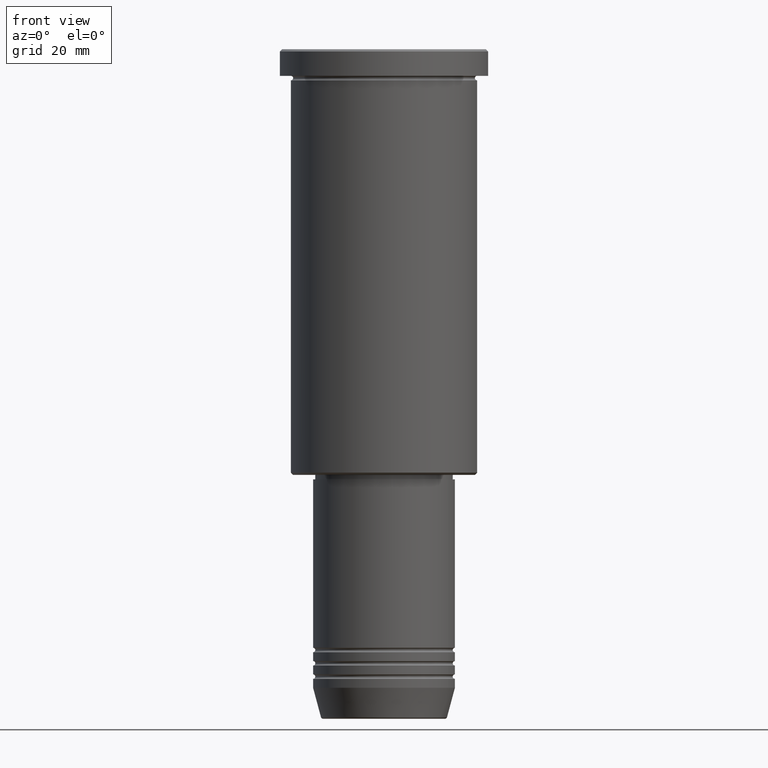
[diagram: clean part render]
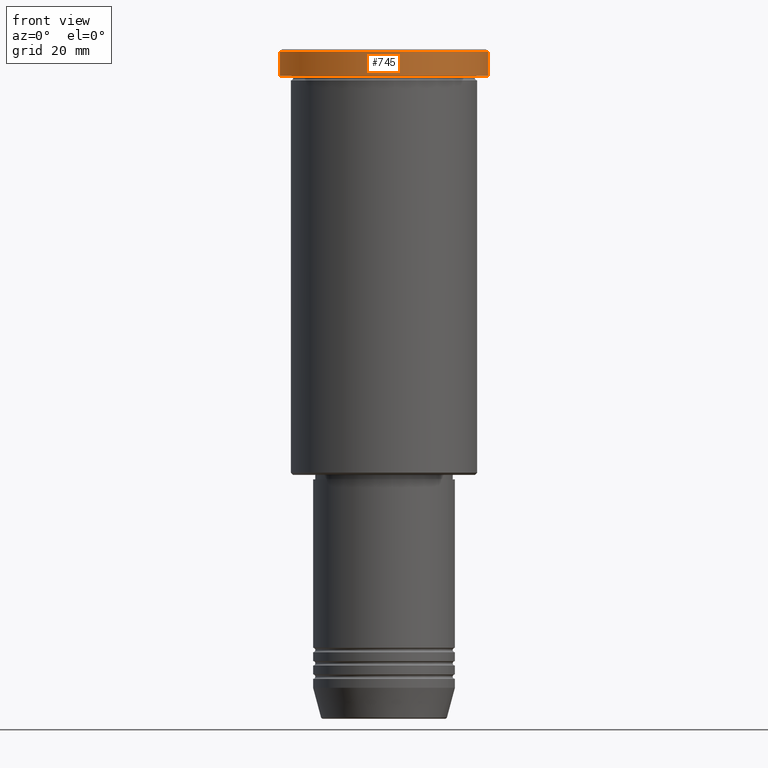
[diagram: same view with one face highlighted and labeled with its STEP entity id]
A machine part, front view. The second image highlights one B-rep face of the part: STEP entity #745.
In plain terms, the highlighted cylindrical surface (partial cylindrical patch) has radius 23.5 mm, axis along (-0, -0, 1).
Its self-contained STEP definition (entity closure, byte-faithful):
#13 = CARTESIAN_POINT ( 'NONE',  ( 23.50000000000000000, 0.000000000000000000, -0.5000000000000143219 ) ) ;
#22 = CYLINDRICAL_SURFACE ( 'NONE', #49, 23.50000000000000000 ) ;
#27 = CARTESIAN_POINT ( 'NONE',  ( -23.50000000000000000, 2.877919977996280320E-15, -5.999999999999994671 ) ) ;
#36 = AXIS2_PLACEMENT_3D ( 'NONE', #649, #458, #1173 ) ;
#49 = AXIS2_PLACEMENT_3D ( 'NONE', #385, #489, #1131 ) ;
#64 = CARTESIAN_POINT ( 'NONE',  ( -23.50000000000000000, 2.877919977996280320E-15, 0.000000000000000000 ) ) ;
#100 = DIRECTION ( 'NONE',  ( -0.000000000000000000, -0.000000000000000000, 1.000000000000000000 ) ) ;
#214 = EDGE_CURVE ( 'NONE', #979, #670, #702, .T. ) ;
#268 = DIRECTION ( 'NONE',  ( 1.000000000000000000, 0.000000000000000000, 0.000000000000000000 ) ) ;
#287 = DIRECTION ( 'NONE',  ( -0.000000000000000000, -0.000000000000000000, 1.000000000000000000 ) ) ;
#291 = EDGE_LOOP ( 'NONE', ( #1103, #854, #1043, #589 ) ) ;
#350 = EDGE_CURVE ( 'NONE', #979, #955, #596, .T. ) ;
#385 = CARTESIAN_POINT ( 'NONE',  ( 0.000000000000000000, 0.000000000000000000, 0.000000000000000000 ) ) ;
#418 = CIRCLE ( 'NONE', #36, 23.50000000000000000 ) ;
#458 = DIRECTION ( 'NONE',  ( 0.000000000000000000, 0.000000000000000000, -1.000000000000000000 ) ) ;
#459 = CARTESIAN_POINT ( 'NONE',  ( -23.50000000000000000, 2.877919977996280320E-15, -0.5000000000000143219 ) ) ;
#489 = DIRECTION ( 'NONE',  ( -0.000000000000000000, -0.000000000000000000, 1.000000000000000000 ) ) ;
#498 = EDGE_CURVE ( 'NONE', #955, #989, #755, .T. ) ;
#520 = DIRECTION ( 'NONE',  ( -0.000000000000000000, -0.000000000000000000, 1.000000000000000000 ) ) ;
#589 = ORIENTED_EDGE ( 'NONE', *, *, #960, .T. ) ;
#596 = CIRCLE ( 'NONE', #947, 23.50000000000000000 ) ;
#628 = VECTOR ( 'NONE', #520, 1000.000000000000000 ) ;
#646 = CARTESIAN_POINT ( 'NONE',  ( 0.000000000000000000, 0.000000000000000000, -5.999999999999994671 ) ) ;
#649 = CARTESIAN_POINT ( 'NONE',  ( 0.000000000000000000, 0.000000000000000000, -0.5000000000000143219 ) ) ;
#670 = VERTEX_POINT ( 'NONE', #459 ) ;
#702 = LINE ( 'NONE', #64, #628 ) ;
#745 = ADVANCED_FACE ( 'NONE', ( #856 ), #22, .T. ) ;
#755 = LINE ( 'NONE', #1111, #925 ) ;
#854 = ORIENTED_EDGE ( 'NONE', *, *, #350, .T. ) ;
#856 = FACE_OUTER_BOUND ( 'NONE', #291, .T. ) ;
#900 = CARTESIAN_POINT ( 'NONE',  ( 23.50000000000000000, 0.000000000000000000, -5.999999999999994671 ) ) ;
#925 = VECTOR ( 'NONE', #100, 1000.000000000000000 ) ;
#947 = AXIS2_PLACEMENT_3D ( 'NONE', #646, #287, #268 ) ;
#955 = VERTEX_POINT ( 'NONE', #900 ) ;
#960 = EDGE_CURVE ( 'NONE', #989, #670, #418, .T. ) ;
#979 = VERTEX_POINT ( 'NONE', #27 ) ;
#989 = VERTEX_POINT ( 'NONE', #13 ) ;
#1043 = ORIENTED_EDGE ( 'NONE', *, *, #498, .T. ) ;
#1103 = ORIENTED_EDGE ( 'NONE', *, *, #214, .F. ) ;
#1111 = CARTESIAN_POINT ( 'NONE',  ( 23.50000000000000000, 0.000000000000000000, 0.000000000000000000 ) ) ;
#1131 = DIRECTION ( 'NONE',  ( 1.000000000000000000, 0.000000000000000000, 0.000000000000000000 ) ) ;
#1173 = DIRECTION ( 'NONE',  ( 1.000000000000000000, 0.000000000000000000, 0.000000000000000000 ) ) ;